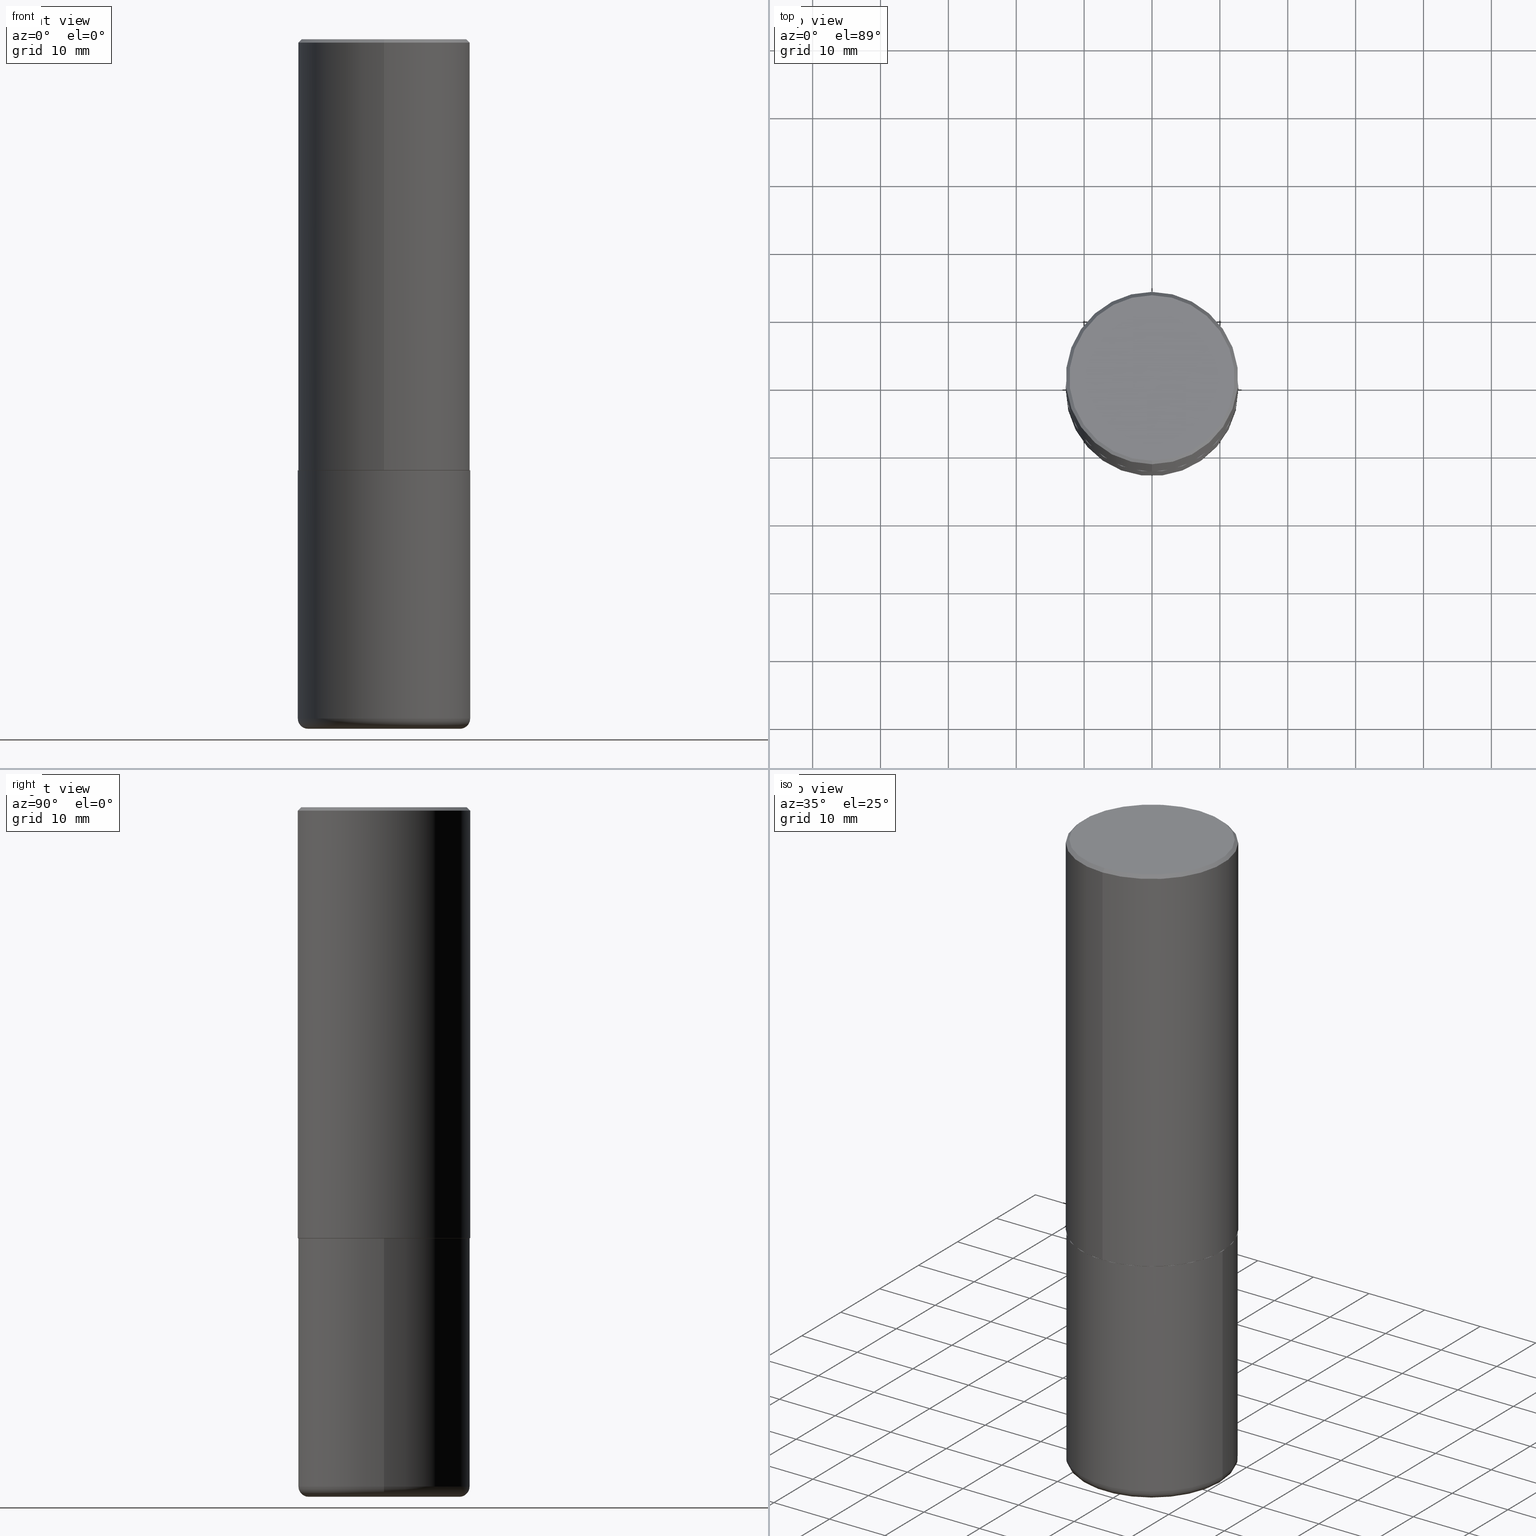
[diagram: canonical four-view strip — front | top / right | iso, engineering-drawing reading convention]
A machine part, canonical four-view strip (front | top / right | iso — engineering-drawing reading convention). The complete STEP part file that produces these views, byte-faithful:
ISO-10303-21;
HEADER;
FILE_DESCRIPTION (( 'STEP AP203' ),
    '1' );
FILE_NAME ('36391.STEP',
    '2024-03-01T16:25:34',
    ( '' ),
    ( '' ),
    'SwSTEP 2.0',
    'SolidWorks 2023',
    '' );
FILE_SCHEMA (( 'CONFIG_CONTROL_DESIGN' ));
ENDSEC;

DATA;
#1 = ORIENTED_EDGE ( 'NONE', *, *, #255, .F. ) ;
#2 = AXIS2_PLACEMENT_3D ( 'NONE', #315, #117, #113 ) ;
#3 = ORIENTED_EDGE ( 'NONE', *, *, #417, .T. ) ;
#4 = DIRECTION ( 'NONE',  ( -1.000000000000000000, 6.982962677686265922E-15, -4.876176775795935793E-29 ) ) ;
#5 = EDGE_CURVE ( 'NONE', #310, #291, #336, .T. ) ;
#6 = ORIENTED_EDGE ( 'NONE', *, *, #366, .F. ) ;
#7 = DIRECTION ( 'NONE',  ( 2.438088387897960049E-29, -3.491481338843145188E-15, -1.000000000000000000 ) ) ;
#8 = ORIENTED_EDGE ( 'NONE', *, *, #371, .F. ) ;
#9 = CARTESIAN_POINT ( 'NONE',  ( 3.491481338843133355E-15, 0.4999999999999999445, -0.02000000000000185310 ) ) ;
#10 = CALENDAR_DATE ( 2024, 1, 3 ) ;
#11 = ORIENTED_EDGE ( 'NONE', *, *, #385, .F. ) ;
#12 = AXIS2_PLACEMENT_3D ( 'NONE', #135, #129, #272 ) ;
#13 = DIRECTION ( 'NONE',  ( -2.445468806185136597E-29, 3.491481338843145583E-15, 1.000000000000000000 ) ) ;
#14 = ADVANCED_FACE ( 'NONE', ( #338 ), #307, .T. ) ;
#15 = CARTESIAN_POINT ( 'NONE',  ( -3.439847008941952136E-45, 4.909920141751372761E-31, 1.406439127464440065E-16 ) ) ;
#16 = CYLINDRICAL_SURFACE ( 'NONE', #388, 0.5000000000000000000 ) ;
#17 = AXIS2_PLACEMENT_3D ( 'NONE', #232, #339, #65 ) ;
#18 = CARTESIAN_POINT ( 'NONE',  ( 6.112015449145901369E-29, -8.724082112502882072E-15, -2.499000000000000110 ) ) ;
#19 = DIRECTION ( 'NONE',  ( 1.000000000000000000, -6.982962677686265133E-15, 0.000000000000000000 ) ) ;
#20 = DIRECTION ( 'NONE',  ( -2.445468806185136597E-29, 3.491481338843145583E-15, 1.000000000000000000 ) ) ;
#21 = CARTESIAN_POINT ( 'NONE',  ( -3.491481338843073796E-15, -0.5000000000000089928, -2.498999999999998778 ) ) ;
#22 = EDGE_CURVE ( 'NONE', #310, #214, #365, .T. ) ;
#23 = VECTOR ( 'NONE', #278, 39.37007874015748143 ) ;
#24 = APPLICATION_PROTOCOL_DEFINITION ( 'international standard', 'config_control_design', 1994, #82 ) ;
#25 = DIRECTION ( 'NONE',  ( -6.982962677686265922E-15, -1.000000000000000000, 3.491029256703833834E-15 ) ) ;
#26 = APPROVAL_DATE_TIME ( #324, #90 ) ;
#27 = ORIENTED_EDGE ( 'NONE', *, *, #337, .T. ) ;
#28 = PERSON_AND_ORGANIZATION ( #397, #174 ) ;
#29 = EDGE_CURVE ( 'NONE', #271, #177, #183, .T. ) ;
#30 = CALENDAR_DATE ( 2024, 1, 3 ) ;
#31 = AXIS2_PLACEMENT_3D ( 'NONE', #143, #45, #207 ) ;
#32 = ORIENTED_EDGE ( 'NONE', *, *, #22, .F. ) ;
#33 = CARTESIAN_POINT ( 'NONE',  ( 4.891568986911511881E-31, -6.982058513407704202E-17, -0.02000000000000010797 ) ) ;
#34 = ADVANCED_FACE ( 'NONE', ( #280 ), #97, .T. ) ;
#35 = DIRECTION ( 'NONE',  ( -4.937700262165728178E-15, -0.7071067811867141062, 0.7071067811863809283 ) ) ;
#36 = CALENDAR_DATE ( 2024, 1, 3 ) ;
#37 = CARTESIAN_POINT ( 'NONE',  ( 4.891568986911511881E-31, -6.982058513407704202E-17, -0.02000000000000010797 ) ) ;
#38 = LINE ( 'NONE', #299, #258 ) ;
#39 = CARTESIAN_POINT ( 'NONE',  ( 3.552713678800533273E-15, 0.4999999999999916178, -2.499000000000001886 ) ) ;
#40 = EDGE_LOOP ( 'NONE', ( #195, #130, #164, #136 ) ) ;
#41 = ORIENTED_EDGE ( 'NONE', *, *, #84, .F. ) ;
#42 = LINE ( 'NONE', #178, #23 ) ;
#43 = DIRECTION ( 'NONE',  ( -2.445784493455742698E-29, 3.491029256703833440E-15, 1.000000000000000000 ) ) ;
#44 = DIRECTION ( 'NONE',  ( -2.445784493455742698E-29, 3.491029256703833440E-15, 1.000000000000000000 ) ) ;
#45 = DIRECTION ( 'NONE',  ( 2.445784493455742698E-29, -3.491029256703833834E-15, -1.000000000000000000 ) ) ;
#46 = ORIENTED_EDGE ( 'NONE', *, *, #122, .T. ) ;
#47 = CARTESIAN_POINT ( 'NONE',  ( 6.114461233639357165E-29, -8.727573141759585177E-15, -2.500000000000000000 ) ) ;
#48 = PRODUCT_RELATED_PRODUCT_CATEGORY ( 'detail', '', ( #289 ) ) ;
#49 = PLANE ( 'NONE',  #2 ) ;
#50 = AXIS2_PLACEMENT_3D ( 'NONE', #151, #218, #352 ) ;
#51 = CARTESIAN_POINT ( 'NONE',  ( -3.430248998885764992E-15, -0.5000000000000001110, -0.01999999999999835937 ) ) ;
#52 = EDGE_CURVE ( 'NONE', #214, #201, #38, .T. ) ;
#53 = DIRECTION ( 'NONE',  ( 1.000000000000000000, -6.982962677686269077E-15, 0.000000000000000000 ) ) ;
#54 = CARTESIAN_POINT ( 'NONE',  ( 6.113672015462842613E-29, -8.728703347107864943E-15, -2.500000000000000000 ) ) ;
#55 = CIRCLE ( 'NONE', #297, 0.5000000000000001110 ) ;
#56 = CIRCLE ( 'NONE', #204, 0.4799999999999998157 ) ;
#57 = CARTESIAN_POINT ( 'NONE',  ( 0.000000000000000000, 0.000000000000000000, 0.000000000000000000 ) ) ;
#58 = ORIENTED_EDGE ( 'NONE', *, *, #145, .F. ) ;
#59 = EDGE_CURVE ( 'NONE', #94, #134, #235, .T. ) ;
#60 = ORIENTED_EDGE ( 'NONE', *, *, #243, .F. ) ;
#61 = CALENDAR_DATE ( 2024, 1, 3 ) ;
#62 = ADVANCED_FACE ( 'NONE', ( #217 ), #73, .T. ) ;
#63 = ORIENTED_EDGE ( 'NONE', *, *, #176, .T. ) ;
#64 = EDGE_LOOP ( 'NONE', ( #126, #395 ) ) ;
#65 = DIRECTION ( 'NONE',  ( 1.000000000000000000, -6.982962677686265133E-15, 0.000000000000000000 ) ) ;
#66 = VECTOR ( 'NONE', #35, 39.37007874015748143 ) ;
#67 = CARTESIAN_POINT ( 'NONE',  ( 0.5000000000000001110, -1.724791781388512737E-14, -3.939999999999999947 ) ) ;
#68 = CARTESIAN_POINT ( 'NONE',  ( 3.552713678800501718E-15, 0.5000000000000001110, -1.745514628351917311E-15 ) ) ;
#69 = DIRECTION ( 'NONE',  ( -2.445784493455742698E-29, 3.491029256703833834E-15, 1.000000000000000000 ) ) ;
#70 = ORIENTED_EDGE ( 'NONE', *, *, #92, .F. ) ;
#71 = VERTEX_POINT ( 'NONE', #286 ) ;
#72 = APPLICATION_PROTOCOL_DEFINITION ( 'international standard', 'config_control_design', 1994, #114 ) ;
#73 = TOROIDAL_SURFACE ( 'NONE', #50, 0.4400000000000000022, 0.06000000000000024758 ) ;
#74 = ORIENTED_EDGE ( 'NONE', *, *, #326, .T. ) ;
#75 = AXIS2_PLACEMENT_3D ( 'NONE', #238, #7, #4 ) ;
#76 = APPROVAL_PERSON_ORGANIZATION ( #28, #406, #239 ) ;
#77 = CARTESIAN_POINT ( 'NONE',  ( 9.781875224740547508E-29, -1.396592535537258391E-14, -4.000000000000000888 ) ) ;
#78 = CC_DESIGN_PERSON_AND_ORGANIZATION_ASSIGNMENT ( #227, #389, ( #247 ) ) ;
#79 = CARTESIAN_POINT ( 'NONE',  ( 0.4400000000000000022, -1.682894005322395074E-14, -3.939999999999999947 ) ) ;
#80 = DIRECTION ( 'NONE',  ( -6.982962677686265922E-15, -1.000000000000000000, 3.284787166730577015E-15 ) ) ;
#81 = CARTESIAN_POINT ( 'NONE',  ( 0.5000000000000000000, -1.222018468595099830E-14, -2.500000000000000000 ) ) ;
#82 = APPLICATION_CONTEXT ( 'configuration controlled 3d designs of mechanical parts and assemblies' ) ;
#83 = DIRECTION ( 'NONE',  ( -6.982962677686265922E-15, -1.000000000000000000, 3.491029256703833834E-15 ) ) ;
#84 = EDGE_CURVE ( 'NONE', #71, #327, #290, .T. ) ;
#85 = CYLINDRICAL_SURFACE ( 'NONE', #236, 0.5000000000000001110 ) ;
#86 = PERSON_AND_ORGANIZATION ( #397, #174 ) ;
#87 = APPROVAL_STATUS ( 'not_yet_approved' ) ;
#88 = CLOSED_SHELL ( 'NONE', ( #330, #191, #347, #318, #34, #295, #400, #138 ) ) ;
#89 = CALENDAR_DATE ( 2024, 1, 3 ) ;
#90 = APPROVAL ( #87, 'UNSPECIFIED' ) ;
#91 = ADVANCED_BREP_SHAPE_REPRESENTATION ( '36391', ( #263, #118, #119 ), #101 ) ;
#92 = EDGE_CURVE ( 'NONE', #177, #201, #312, .T. ) ;
#93 = AXIS2_PLACEMENT_3D ( 'NONE', #405, #251, #261 ) ;
#94 = VERTEX_POINT ( 'NONE', #148 ) ;
#95 = DIRECTION ( 'NONE',  ( -2.445784493455742698E-29, 3.491029256703833834E-15, 1.000000000000000000 ) ) ;
#96 = COORDINATED_UNIVERSAL_TIME_OFFSET ( 5, 0, .BEHIND. ) ;
#97 = CYLINDRICAL_SURFACE ( 'NONE', #265, 0.5000000000000001110 ) ;
#98 = CARTESIAN_POINT ( 'NONE',  ( 3.421651712066270057E-15, 0.4799999999999998157, -1.535050130471395610E-15 ) ) ;
#99 = DATE_AND_TIME ( #36, #382 ) ;
#100 = LINE ( 'NONE', #266, #66 ) ;
#101 =( GEOMETRIC_REPRESENTATION_CONTEXT ( 3 ) GLOBAL_UNCERTAINTY_ASSIGNED_CONTEXT ( ( #153 ) ) GLOBAL_UNIT_ASSIGNED_CONTEXT ( ( #115, #346, #181 ) ) REPRESENTATION_CONTEXT ( 'NONE', 'WORKASPACE' ) );
#102 = LINE ( 'NONE', #199, #282 ) ;
#103 = EDGE_LOOP ( 'NONE', ( #325, #418, #212, #372 ) ) ;
#104 = CC_DESIGN_PERSON_AND_ORGANIZATION_ASSIGNMENT ( #86, #373, ( #306 ) ) ;
#105 = DIRECTION ( 'NONE',  ( -2.445784493455742698E-29, 3.491029256703833834E-15, 1.000000000000000000 ) ) ;
#106 = EDGE_LOOP ( 'NONE', ( #70, #180, #3, #262 ) ) ;
#107 = DIRECTION ( 'NONE',  ( -6.982962677686266711E-15, -1.000000000000000000, 3.278217592397114284E-15 ) ) ;
#108 = ADVANCED_FACE ( 'NONE', ( #184 ), #49, .F. ) ;
#109 = AXIS2_PLACEMENT_3D ( 'NONE', #186, #376, #189 ) ;
#110 = FACE_OUTER_BOUND ( 'NONE', #40, .T. ) ;
#111 = CIRCLE ( 'NONE', #17, 0.5000000000000001110 ) ;
#112 = DIRECTION ( 'NONE',  ( -2.445468806185136597E-29, 3.491481338843145583E-15, 1.000000000000000000 ) ) ;
#113 = DIRECTION ( 'NONE',  ( -1.000000000000000000, 6.982962677686265922E-15, -4.876176775795935793E-29 ) ) ;
#114 = APPLICATION_CONTEXT ( 'configuration controlled 3d designs of mechanical parts and assemblies' ) ;
#115 =( CONVERSION_BASED_UNIT ( 'INCH', #349 ) LENGTH_UNIT ( ) NAMED_UNIT ( #309 ) );
#116 = DIRECTION ( 'NONE',  ( 1.000000000000000000, -6.982962677686266711E-15, 4.876176775795935793E-29 ) ) ;
#117 = DIRECTION ( 'NONE',  ( 2.438088387897960049E-29, -3.491481338843145188E-15, -1.000000000000000000 ) ) ;
#118 = MANIFOLD_SOLID_BREP ( 'Body-Move/Copy2[2]', #88 ) ;
#119 = AXIS2_PLACEMENT_3D ( 'NONE', #57, #328, #354 ) ;
#120 = DIRECTION ( 'NONE',  ( -2.445468806185136597E-29, 3.491481338843145583E-15, 1.000000000000000000 ) ) ;
#121 = PERSON_AND_ORGANIZATION ( #397, #174 ) ;
#122 = EDGE_CURVE ( 'NONE', #359, #128, #55, .T. ) ;
#123 = PERSON_AND_ORGANIZATION ( #397, #174 ) ;
#124 = EDGE_LOOP ( 'NONE', ( #8, #231, #398, #32 ) ) ;
#125 = CIRCLE ( 'NONE', #396, 0.4400000000000000022 ) ;
#126 = ORIENTED_EDGE ( 'NONE', *, *, #163, .F. ) ;
#127 = DATE_TIME_ROLE ( 'classification_date' ) ;
#128 = VERTEX_POINT ( 'NONE', #350 ) ;
#129 = DIRECTION ( 'NONE',  ( -2.445784493455742698E-29, 3.491029256703833834E-15, 1.000000000000000000 ) ) ;
#130 = ORIENTED_EDGE ( 'NONE', *, *, #5, .T. ) ;
#131 = CARTESIAN_POINT ( 'NONE',  ( 6.114461233639357165E-29, -8.727573141759585177E-15, -2.500000000000000000 ) ) ;
#132 = CONICAL_SURFACE ( 'NONE', #31, 0.5000000000000000000, 0.7853981633974471688 ) ;
#133 = CONICAL_SURFACE ( 'NONE', #161, 0.4989999999999999991, 0.7853981633976873100 ) ;
#134 = VERTEX_POINT ( 'NONE', #81 ) ;
#135 = CARTESIAN_POINT ( 'NONE',  ( 4.891568986911511881E-31, -6.982058513407704202E-17, -0.02000000000000010797 ) ) ;
#136 = ORIENTED_EDGE ( 'NONE', *, *, #52, .F. ) ;
#137 = APPROVAL_DATE_TIME ( #242, #406 ) ;
#138 = ADVANCED_FACE ( 'NONE', ( #353 ), #285, .F. ) ;
#139 = CARTESIAN_POINT ( 'NONE',  ( 6.114461233639357165E-29, -8.727573141759585177E-15, -2.500000000000000000 ) ) ;
#140 = CONICAL_SURFACE ( 'NONE', #313, 0.5000000000000000000, 0.7853981633974471688 ) ;
#141 = DIRECTION ( 'NONE',  ( -6.982962677686265922E-15, -1.000000000000000000, 3.491643216902136408E-15 ) ) ;
#142 = ORIENTED_EDGE ( 'NONE', *, *, #92, .T. ) ;
#143 = CARTESIAN_POINT ( 'NONE',  ( 4.891568986911511881E-31, -6.982058513407704202E-17, -0.02000000000000010797 ) ) ;
#144 = ORIENTED_EDGE ( 'NONE', *, *, #417, .F. ) ;
#145 = EDGE_CURVE ( 'NONE', #134, #94, #274, .T. ) ;
#146 = DIRECTION ( 'NONE',  ( -6.982962677686265922E-15, -1.000000000000000000, 3.491029256703833834E-15 ) ) ;
#147 = DIRECTION ( 'NONE',  ( -6.982962677686266711E-15, -1.000000000000000000, 3.278217592397114284E-15 ) ) ;
#148 = CARTESIAN_POINT ( 'NONE',  ( -0.5000000000000000000, -7.689856232274428549E-15, -2.500000000000000000 ) ) ;
#149 = CC_DESIGN_APPROVAL ( #230, ( #247 ) ) ;
#150 = CARTESIAN_POINT ( 'NONE',  ( 6.114461233639357165E-29, -8.727573141759585177E-15, -2.500000000000000000 ) ) ;
#151 = CARTESIAN_POINT ( 'NONE',  ( 9.635147096369438236E-29, -1.375643647504199401E-14, -3.939999999999999947 ) ) ;
#152 = DIRECTION ( 'NONE',  ( 1.000000000000000000, -6.982962677686266711E-15, 0.000000000000000000 ) ) ;
#153 = UNCERTAINTY_MEASURE_WITH_UNIT (LENGTH_MEASURE( 1.000000000000000082E-05 ), #115, 'distance_accuracy_value', 'NONE');
#154 = CARTESIAN_POINT ( 'NONE',  ( -3.430248998885764992E-15, -0.5000000000000001110, -0.01999999999999835937 ) ) ;
#155 = VECTOR ( 'NONE', #377, 39.37007874015748143 ) ;
#156 = LOCAL_TIME ( 11, 25, 34.00000000000000000, #340 ) ;
#157 = DIRECTION ( 'NONE',  ( 1.000000000000000000, -6.982962677686266711E-15, 4.883557194083113462E-29 ) ) ;
#158 = ADVANCED_FACE ( 'NONE', ( #407 ), #16, .T. ) ;
#159 = EDGE_LOOP ( 'NONE', ( #368, #241, #194, #6 ) ) ;
#160 = MECHANICAL_CONTEXT ( 'NONE', #114, 'mechanical' ) ;
#161 = AXIS2_PLACEMENT_3D ( 'NONE', #131, #95, #281 ) ;
#162 = PERSON_AND_ORGANIZATION_ROLE ( 'creator' ) ;
#163 = EDGE_CURVE ( 'NONE', #414, #225, #125, .T. ) ;
#164 = ORIENTED_EDGE ( 'NONE', *, *, #337, .F. ) ;
#165 = DIRECTION ( 'NONE',  ( 6.982962677686265922E-15, 1.000000000000000000, -3.491643216902136408E-15 ) ) ;
#166 = ORIENTED_EDGE ( 'NONE', *, *, #288, .T. ) ;
#167 = AXIS2_PLACEMENT_3D ( 'NONE', #168, #301, #298 ) ;
#168 = CARTESIAN_POINT ( 'NONE',  ( -0.4400000000000000022, -1.063004843769755357E-14, -3.939999999999999947 ) ) ;
#169 = DIRECTION ( 'NONE',  ( 1.000000000000000000, -6.982962677686266711E-15, 4.876176775795935793E-29 ) ) ;
#170 = ADVANCED_FACE ( 'NONE', ( #409 ), #334, .T. ) ;
#171 = DIRECTION ( 'NONE',  ( -2.445784493455742698E-29, 3.491029256703833834E-15, 1.000000000000000000 ) ) ;
#172 = EDGE_LOOP ( 'NONE', ( #46, #391, #58, #209 ) ) ;
#173 = AXIS2_PLACEMENT_3D ( 'NONE', #279, #401, #107 ) ;
#174 = ORGANIZATION ( 'UNSPECIFIED', 'UNSPECIFIED', '' ) ;
#175 = DIRECTION ( 'NONE',  ( -6.982962677686265922E-15, -1.000000000000000000, 3.491029256703833440E-15 ) ) ;
#176 = EDGE_CURVE ( 'NONE', #177, #271, #56, .T. ) ;
#177 = VERTEX_POINT ( 'NONE', #223 ) ;
#178 = CARTESIAN_POINT ( 'NONE',  ( 0.5000000000000000000, -3.491481338843133355E-15, 2.438088387897967896E-29 ) ) ;
#179 = PLANE ( 'NONE',  #416 ) ;
#180 = ORIENTED_EDGE ( 'NONE', *, *, #29, .F. ) ;
#181 =( NAMED_UNIT ( * ) SI_UNIT ( $, .STERADIAN. ) SOLID_ANGLE_UNIT ( ) );
#182 = CARTESIAN_POINT ( 'NONE',  ( 0.000000000000000000, 0.000000000000000000, 0.000000000000000000 ) ) ;
#183 = CIRCLE ( 'NONE', #267, 0.4799999999999998157 ) ;
#184 = FACE_OUTER_BOUND ( 'NONE', #237, .T. ) ;
#185 = CIRCLE ( 'NONE', #196, 0.4400000000000000022 ) ;
#186 = CARTESIAN_POINT ( 'NONE',  ( 3.351822085289406364E-15, 0.4799999999999998157, -1.605372086844617625E-15 ) ) ;
#187 = DATE_TIME_ROLE ( 'creation_date' ) ;
#188 = PERSON_AND_ORGANIZATION ( #397, #174 ) ;
#189 = DIRECTION ( 'NONE',  ( 6.982962677686265922E-15, 1.000000000000000000, -3.491029256703833440E-15 ) ) ;
#190 = VECTOR ( 'NONE', #378, 39.37007874015748143 ) ;
#191 = ADVANCED_FACE ( 'NONE', ( #110 ), #85, .T. ) ;
#192 = AXIS2_PLACEMENT_3D ( 'NONE', #139, #69, #343 ) ;
#193 = PERSON_AND_ORGANIZATION_ROLE ( 'design_owner' ) ;
#194 = ORIENTED_EDGE ( 'NONE', *, *, #52, .T. ) ;
#195 = ORIENTED_EDGE ( 'NONE', *, *, #385, .T. ) ;
#196 = AXIS2_PLACEMENT_3D ( 'NONE', #77, #112, #152 ) ;
#197 = COORDINATED_UNIVERSAL_TIME_OFFSET ( 5, 0, .BEHIND. ) ;
#198 = APPROVAL_ROLE ( '' ) ;
#199 = CARTESIAN_POINT ( 'NONE',  ( 3.545608251442960663E-15, 0.4989999999999912283, -2.500000000000001776 ) ) ;
#200 = ORIENTED_EDGE ( 'NONE', *, *, #371, .T. ) ;
#201 = VERTEX_POINT ( 'NONE', #154 ) ;
#202 = DIRECTION ( 'NONE',  ( -2.445784493455742698E-29, 3.491029256703833834E-15, 1.000000000000000000 ) ) ;
#203 = CC_DESIGN_DATE_AND_TIME_ASSIGNMENT ( #208, #127, ( #306 ) ) ;
#204 = AXIS2_PLACEMENT_3D ( 'NONE', #402, #253, #83 ) ;
#205 = DIRECTION ( 'NONE',  ( 5.024295867789263036E-15, 0.7071067811867189912, 0.7071067811863760433 ) ) ;
#206 = CARTESIAN_POINT ( 'NONE',  ( 6.113672015462842613E-29, -8.728703347107864943E-15, -2.500000000000000000 ) ) ;
#207 = DIRECTION ( 'NONE',  ( 6.982962677686265922E-15, 1.000000000000000000, -3.491643216902136408E-15 ) ) ;
#208 = DATE_AND_TIME ( #10, #314 ) ;
#209 = ORIENTED_EDGE ( 'NONE', *, *, #326, .F. ) ;
#210 = FACE_OUTER_BOUND ( 'NONE', #124, .T. ) ;
#211 = APPROVAL_DATE_TIME ( #99, #230 ) ;
#212 = ORIENTED_EDGE ( 'NONE', *, *, #243, .T. ) ;
#213 = AXIS2_PLACEMENT_3D ( 'NONE', #364, #13, #169 ) ;
#214 = VERTEX_POINT ( 'NONE', #21 ) ;
#215 = LOCAL_TIME ( 11, 25, 34.00000000000000000, #292 ) ;
#216 =( LENGTH_UNIT ( ) NAMED_UNIT ( * ) SI_UNIT ( $, .METRE. ) );
#217 = FACE_OUTER_BOUND ( 'NONE', #103, .T. ) ;
#218 = DIRECTION ( 'NONE',  ( -2.445468806185136597E-29, 3.491481338843145583E-15, 1.000000000000000000 ) ) ;
#219 = CC_DESIGN_PERSON_AND_ORGANIZATION_ASSIGNMENT ( #284, #275, ( #247 ) ) ;
#220 = CARTESIAN_POINT ( 'NONE',  ( 0.4400000000000000022, -1.703842893355454063E-14, -4.000000000000000888 ) ) ;
#221 = AXIS2_PLACEMENT_3D ( 'NONE', #54, #120, #53 ) ;
#222 = SECURITY_CLASSIFICATION_LEVEL ( 'unclassified' ) ;
#223 = CARTESIAN_POINT ( 'NONE',  ( -3.361644018908049661E-15, -0.4799999999999998157, 1.816337955964283672E-15 ) ) ;
#224 = CARTESIAN_POINT ( 'NONE',  ( 9.635147096369438236E-29, -1.375643647504199401E-14, -3.939999999999999947 ) ) ;
#225 = VERTEX_POINT ( 'NONE', #287 ) ;
#226 = AXIS2_PLACEMENT_3D ( 'NONE', #384, #383, #157 ) ;
#227 = PERSON_AND_ORGANIZATION ( #397, #174 ) ;
#228 = LOCAL_TIME ( 11, 25, 34.00000000000000000, #415 ) ;
#229 = EDGE_LOOP ( 'NONE', ( #273, #63 ) ) ;
#230 = APPROVAL ( #296, 'UNSPECIFIED' ) ;
#231 = ORIENTED_EDGE ( 'NONE', *, *, #84, .T. ) ;
#232 = CARTESIAN_POINT ( 'NONE',  ( 9.635147096369438236E-29, -1.375643647504199401E-14, -3.939999999999999947 ) ) ;
#233 = ORIENTED_EDGE ( 'NONE', *, *, #59, .F. ) ;
#234 = FACE_OUTER_BOUND ( 'NONE', #106, .T. ) ;
#235 = CIRCLE ( 'NONE', #410, 0.5000000000000000000 ) ;
#236 = AXIS2_PLACEMENT_3D ( 'NONE', #319, #248, #25 ) ;
#237 = EDGE_LOOP ( 'NONE', ( #360, #348 ) ) ;
#238 = CARTESIAN_POINT ( 'NONE',  ( 6.313440210036972125E-29, -1.893292170748942541E-14, -4.000000000000000000 ) ) ;
#239 = APPROVAL_ROLE ( '' ) ;
#240 = DIRECTION ( 'NONE',  ( 2.445784493455742698E-29, -3.491029256703833834E-15, -1.000000000000000000 ) ) ;
#241 = ORIENTED_EDGE ( 'NONE', *, *, #22, .T. ) ;
#242 = DATE_AND_TIME ( #61, #156 ) ;
#243 = EDGE_CURVE ( 'NONE', #414, #359, #268, .T. ) ;
#244 = FACE_OUTER_BOUND ( 'NONE', #369, .T. ) ;
#245 = ORIENTED_EDGE ( 'NONE', *, *, #250, .F. ) ;
#246 = CIRCLE ( 'NONE', #259, 0.5000000000000000000 ) ;
#247 = PRODUCT_DEFINITION_FORMATION_WITH_SPECIFIED_SOURCE ( 'ANY', '', #289, .NOT_KNOWN. ) ;
#248 = DIRECTION ( 'NONE',  ( -2.445784493455742698E-29, 3.491029256703833834E-15, 1.000000000000000000 ) ) ;
#249 = LINE ( 'NONE', #408, #155 ) ;
#250 = EDGE_CURVE ( 'NONE', #327, #71, #323, .T. ) ;
#251 = DIRECTION ( 'NONE',  ( -2.445784493455742698E-29, 3.491029256703833834E-15, 1.000000000000000000 ) ) ;
#252 = CARTESIAN_POINT ( 'NONE',  ( 9.781875224740547508E-29, -1.396592535537258391E-14, -4.000000000000000888 ) ) ;
#253 = DIRECTION ( 'NONE',  ( -2.445784493455742698E-29, 3.491029256703833834E-15, 1.000000000000000000 ) ) ;
#254 = CONICAL_SURFACE ( 'NONE', #192, 0.4989999999999999991, 0.7853981633976873100 ) ;
#255 = EDGE_CURVE ( 'NONE', #327, #214, #100, .T. ) ;
#256 = DIRECTION ( 'NONE',  ( -2.445468806185136597E-29, 3.491481338843145583E-15, 1.000000000000000000 ) ) ;
#257 = PRODUCT_DEFINITION_SHAPE ( 'NONE', 'NONE',  #311 ) ;
#258 = VECTOR ( 'NONE', #394, 39.37007874015748143 ) ;
#259 = AXIS2_PLACEMENT_3D ( 'NONE', #37, #105, #141 ) ;
#260 = ORIENTED_EDGE ( 'NONE', *, *, #250, .T. ) ;
#261 = DIRECTION ( 'NONE',  ( -6.982962677686265922E-15, -1.000000000000000000, 3.284787166730577015E-15 ) ) ;
#262 = ORIENTED_EDGE ( 'NONE', *, *, #366, .T. ) ;
#263 = MANIFOLD_SOLID_BREP ( 'Body-Move/Copy2[1]', #387 ) ;
#264 = ORIENTED_EDGE ( 'NONE', *, *, #122, .F. ) ;
#265 = AXIS2_PLACEMENT_3D ( 'NONE', #363, #202, #333 ) ;
#266 = CARTESIAN_POINT ( 'NONE',  ( -3.484498376165385415E-15, -0.4990000000000087144, -2.499999999999998668 ) ) ;
#267 = AXIS2_PLACEMENT_3D ( 'NONE', #15, #171, #146 ) ;
#268 = CIRCLE ( 'NONE', #367, 0.06000000000000024758 ) ;
#269 = CC_DESIGN_PERSON_AND_ORGANIZATION_ASSIGNMENT ( #123, #162, ( #311 ) ) ;
#270 = ORIENTED_EDGE ( 'NONE', *, *, #380, .F. ) ;
#271 = VERTEX_POINT ( 'NONE', #98 ) ;
#272 = DIRECTION ( 'NONE',  ( -6.982962677686265922E-15, -1.000000000000000000, 3.491643216902136408E-15 ) ) ;
#273 = ORIENTED_EDGE ( 'NONE', *, *, #29, .T. ) ;
#274 = CIRCLE ( 'NONE', #221, 0.5000000000000000000 ) ;
#275 = PERSON_AND_ORGANIZATION_ROLE ( 'creator' ) ;
#276 = ORIENTED_EDGE ( 'NONE', *, *, #362, .T. ) ;
#277 = ADVANCED_FACE ( 'NONE', ( #303 ), #300, .T. ) ;
#278 = DIRECTION ( 'NONE',  ( -2.445468806185136877E-29, 3.491481338843145188E-15, 1.000000000000000000 ) ) ;
#279 = CARTESIAN_POINT ( 'NONE',  ( 6.112015449145901369E-29, -8.724082112502882072E-15, -2.499000000000000110 ) ) ;
#280 = FACE_OUTER_BOUND ( 'NONE', #159, .T. ) ;
#281 = DIRECTION ( 'NONE',  ( -6.982962677686265922E-15, -1.000000000000000000, 3.284787166730577015E-15 ) ) ;
#282 = VECTOR ( 'NONE', #205, 39.37007874015748143 ) ;
#283 = DIRECTION ( 'NONE',  ( 1.000000000000000000, -6.982962677686271444E-15, 0.000000000000000000 ) ) ;
#284 = PERSON_AND_ORGANIZATION ( #397, #174 ) ;
#285 = PLANE ( 'NONE',  #109 ) ;
#286 = CARTESIAN_POINT ( 'NONE',  ( 3.549160965121762351E-15, 0.4989999999999912283, -2.500000000000001776 ) ) ;
#287 = CARTESIAN_POINT ( 'NONE',  ( -0.4400000000000000022, -1.052163005713481670E-14, -4.000000000000000888 ) ) ;
#288 = EDGE_CURVE ( 'NONE', #128, #359, #111, .T. ) ;
#289 = PRODUCT ( '36391', '36391', '', ( #160 ) ) ;
#290 = CIRCLE ( 'NONE', #320, 0.4989999999999999991 ) ;
#291 = VERTEX_POINT ( 'NONE', #9 ) ;
#292 = COORDINATED_UNIVERSAL_TIME_OFFSET ( 5, 0, .BEHIND. ) ;
#293 = EDGE_LOOP ( 'NONE', ( #260, #200, #11, #1 ) ) ;
#294 = ORIENTED_EDGE ( 'NONE', *, *, #163, .T. ) ;
#295 = ADVANCED_FACE ( 'NONE', ( #210 ), #254, .T. ) ;
#296 = APPROVAL_STATUS ( 'not_yet_approved' ) ;
#297 = AXIS2_PLACEMENT_3D ( 'NONE', #224, #316, #19 ) ;
#298 = DIRECTION ( 'NONE',  ( -1.000000000000000000, 7.105427357600993970E-15, 0.000000000000000000 ) ) ;
#299 = CARTESIAN_POINT ( 'NONE',  ( -3.491481338843133750E-15, -0.5000000000000001110, 1.745514628351917311E-15 ) ) ;
#300 = PLANE ( 'NONE',  #75 ) ;
#301 = DIRECTION ( 'NONE',  ( 7.105427357601001859E-15, 1.000000000000000000, -3.491481338843145583E-15 ) ) ;
#302 = EDGE_LOOP ( 'NONE', ( #270, #166, #74, #233 ) ) ;
#303 = FACE_OUTER_BOUND ( 'NONE', #64, .T. ) ;
#304 = CC_DESIGN_DATE_AND_TIME_ASSIGNMENT ( #358, #187, ( #311 ) ) ;
#305 = EDGE_LOOP ( 'NONE', ( #342, #142, #27, #144 ) ) ;
#306 = SECURITY_CLASSIFICATION ( '', '', #222 ) ;
#307 = CYLINDRICAL_SURFACE ( 'NONE', #213, 0.5000000000000000000 ) ;
#308 = FACE_OUTER_BOUND ( 'NONE', #293, .T. ) ;
#309 = DIMENSIONAL_EXPONENTS ( 1.000000000000000000, 0.000000000000000000, 0.000000000000000000, 0.000000000000000000, 0.000000000000000000, 0.000000000000000000, 0.000000000000000000 ) ;
#310 = VERTEX_POINT ( 'NONE', #39 ) ;
#311 = PRODUCT_DEFINITION ( 'UNKNOWN', '', #247, #317 ) ;
#312 = LINE ( 'NONE', #51, #190 ) ;
#313 = AXIS2_PLACEMENT_3D ( 'NONE', #33, #240, #165 ) ;
#314 = LOCAL_TIME ( 11, 25, 34.00000000000000000, #197 ) ;
#315 = CARTESIAN_POINT ( 'NONE',  ( 4.206032757375876713E-29, -1.146055134077212698E-14, -2.500000000000000000 ) ) ;
#316 = DIRECTION ( 'NONE',  ( -2.445468806185136597E-29, 3.491481338843145583E-15, 1.000000000000000000 ) ) ;
#317 = DESIGN_CONTEXT ( 'detailed design', #82, 'design' ) ;
#318 = ADVANCED_FACE ( 'NONE', ( #234 ), #132, .T. ) ;
#319 = CARTESIAN_POINT ( 'NONE',  ( 0.000000000000000000, 0.000000000000000000, 0.000000000000000000 ) ) ;
#320 = AXIS2_PLACEMENT_3D ( 'NONE', #47, #351, #80 ) ;
#321 = VECTOR ( 'NONE', #341, 39.37007874015748143 ) ;
#322 = DIRECTION ( 'NONE',  ( 1.000000000000000000, -6.982962677686266711E-15, 0.000000000000000000 ) ) ;
#323 = CIRCLE ( 'NONE', #93, 0.4989999999999999991 ) ;
#324 = DATE_AND_TIME ( #30, #228 ) ;
#325 = ORIENTED_EDGE ( 'NONE', *, *, #362, .F. ) ;
#326 = EDGE_CURVE ( 'NONE', #359, #134, #42, .T. ) ;
#327 = VERTEX_POINT ( 'NONE', #399 ) ;
#328 = DIRECTION ( 'NONE',  ( 0.000000000000000000, 0.000000000000000000, 1.000000000000000000 ) ) ;
#329 = EDGE_LOOP ( 'NONE', ( #294, #276, #264, #60 ) ) ;
#330 = ADVANCED_FACE ( 'NONE', ( #308 ), #133, .T. ) ;
#331 = CARTESIAN_POINT ( 'NONE',  ( -0.5000000000000000000, 3.552713678800500929E-15, -2.459467545127452891E-29 ) ) ;
#332 = PERSON_AND_ORGANIZATION ( #397, #174 ) ;
#333 = DIRECTION ( 'NONE',  ( -6.982962677686265922E-15, -1.000000000000000000, 3.491029256703833834E-15 ) ) ;
#334 = TOROIDAL_SURFACE ( 'NONE', #226, 0.4400000000000000022, 0.06000000000000024758 ) ;
#335 = LINE ( 'NONE', #331, #321 ) ;
#336 = LINE ( 'NONE', #68, #374 ) ;
#337 = EDGE_CURVE ( 'NONE', #201, #291, #246, .T. ) ;
#338 = FACE_OUTER_BOUND ( 'NONE', #302, .T. ) ;
#339 = DIRECTION ( 'NONE',  ( -2.445468806185136597E-29, 3.491481338843145583E-15, 1.000000000000000000 ) ) ;
#340 = COORDINATED_UNIVERSAL_TIME_OFFSET ( 5, 0, .BEHIND. ) ;
#341 = DIRECTION ( 'NONE',  ( -2.445468806185136877E-29, 3.491481338843145188E-15, 1.000000000000000000 ) ) ;
#342 = ORIENTED_EDGE ( 'NONE', *, *, #176, .F. ) ;
#343 = DIRECTION ( 'NONE',  ( -6.982962677686265922E-15, -1.000000000000000000, 3.284787166730577015E-15 ) ) ;
#344 = CIRCLE ( 'NONE', #167, 0.06000000000000024758 ) ;
#345 = APPROVAL_PERSON_ORGANIZATION ( #332, #230, #198 ) ;
#346 =( NAMED_UNIT ( * ) PLANE_ANGLE_UNIT ( ) SI_UNIT ( $, .RADIAN. ) );
#347 = ADVANCED_FACE ( 'NONE', ( #390 ), #140, .T. ) ;
#348 = ORIENTED_EDGE ( 'NONE', *, *, #59, .T. ) ;
#349 = LENGTH_MEASURE_WITH_UNIT ( LENGTH_MEASURE( 0.02539999999999999897 ), #216 );
#350 = CARTESIAN_POINT ( 'NONE',  ( -0.5000000000000001110, -1.020372279624149151E-14, -3.939999999999999947 ) ) ;
#351 = DIRECTION ( 'NONE',  ( -2.445784493455742698E-29, 3.491029256703833834E-15, 1.000000000000000000 ) ) ;
#352 = DIRECTION ( 'NONE',  ( 1.000000000000000000, -6.982962677686266711E-15, 4.883557194083113462E-29 ) ) ;
#353 = FACE_OUTER_BOUND ( 'NONE', #229, .T. ) ;
#354 = DIRECTION ( 'NONE',  ( 1.000000000000000000, 0.000000000000000000, 0.000000000000000000 ) ) ;
#355 = DIRECTION ( 'NONE',  ( 1.000000000000000000, -6.982962677686269077E-15, 0.000000000000000000 ) ) ;
#356 = CC_DESIGN_APPROVAL ( #406, ( #306 ) ) ;
#357 = CC_DESIGN_PERSON_AND_ORGANIZATION_ASSIGNMENT ( #188, #193, ( #289 ) ) ;
#358 = DATE_AND_TIME ( #89, #215 ) ;
#359 = VERTEX_POINT ( 'NONE', #67 ) ;
#360 = ORIENTED_EDGE ( 'NONE', *, *, #145, .T. ) ;
#361 = APPROVAL_STATUS ( 'not_yet_approved' ) ;
#362 = EDGE_CURVE ( 'NONE', #225, #128, #344, .T. ) ;
#363 = CARTESIAN_POINT ( 'NONE',  ( 0.000000000000000000, 0.000000000000000000, 0.000000000000000000 ) ) ;
#364 = CARTESIAN_POINT ( 'NONE',  ( 0.000000000000000000, 0.000000000000000000, 0.000000000000000000 ) ) ;
#365 = CIRCLE ( 'NONE', #173, 0.5000000000000002220 ) ;
#366 = EDGE_CURVE ( 'NONE', #291, #201, #403, .T. ) ;
#367 = AXIS2_PLACEMENT_3D ( 'NONE', #79, #413, #283 ) ;
#368 = ORIENTED_EDGE ( 'NONE', *, *, #5, .F. ) ;
#369 = EDGE_LOOP ( 'NONE', ( #245, #41 ) ) ;
#370 = SHAPE_DEFINITION_REPRESENTATION ( #257, #91 ) ;
#371 = EDGE_CURVE ( 'NONE', #71, #310, #102, .T. ) ;
#372 = ORIENTED_EDGE ( 'NONE', *, *, #288, .F. ) ;
#373 = PERSON_AND_ORGANIZATION_ROLE ( 'classification_officer' ) ;
#374 = VECTOR ( 'NONE', #44, 39.37007874015748143 ) ;
#375 = CIRCLE ( 'NONE', #381, 0.5000000000000002220 ) ;
#376 = DIRECTION ( 'NONE',  ( 2.445784493455742698E-29, -3.491029256703833440E-15, -1.000000000000000000 ) ) ;
#377 = DIRECTION ( 'NONE',  ( 4.937700262164541731E-15, 0.7071067811865442421, -0.7071067811865507924 ) ) ;
#378 = DIRECTION ( 'NONE',  ( -4.851104656540957964E-15, -0.7071067811865491270, -0.7071067811865459074 ) ) ;
#379 = DIRECTION ( 'NONE',  ( -2.445468806185136597E-29, 3.491481338843145583E-15, 1.000000000000000000 ) ) ;
#380 = EDGE_CURVE ( 'NONE', #128, #94, #335, .T. ) ;
#381 = AXIS2_PLACEMENT_3D ( 'NONE', #18, #404, #147 ) ;
#382 = LOCAL_TIME ( 11, 25, 34.00000000000000000, #96 ) ;
#383 = DIRECTION ( 'NONE',  ( -2.445468806185136597E-29, 3.491481338843145583E-15, 1.000000000000000000 ) ) ;
#384 = CARTESIAN_POINT ( 'NONE',  ( 9.635147096369438236E-29, -1.375643647504199401E-14, -3.939999999999999947 ) ) ;
#385 = EDGE_CURVE ( 'NONE', #214, #310, #375, .T. ) ;
#386 = APPROVAL_ROLE ( '' ) ;
#387 = CLOSED_SHELL ( 'NONE', ( #158, #170, #108, #14, #62, #277 ) ) ;
#388 = AXIS2_PLACEMENT_3D ( 'NONE', #182, #256, #116 ) ;
#389 = PERSON_AND_ORGANIZATION_ROLE ( 'design_supplier' ) ;
#390 = FACE_OUTER_BOUND ( 'NONE', #305, .T. ) ;
#391 = ORIENTED_EDGE ( 'NONE', *, *, #380, .T. ) ;
#392 = CC_DESIGN_APPROVAL ( #90, ( #311 ) ) ;
#393 = EDGE_CURVE ( 'NONE', #225, #414, #185, .T. ) ;
#394 = DIRECTION ( 'NONE',  ( -2.445784493455742698E-29, 3.491029256703833440E-15, 1.000000000000000000 ) ) ;
#395 = ORIENTED_EDGE ( 'NONE', *, *, #393, .F. ) ;
#396 = AXIS2_PLACEMENT_3D ( 'NONE', #252, #20, #322 ) ;
#397 = PERSON ( 'UNSPECIFIED', 'UNSPECIFIED', 'UNSPECIFIED', ('UNSPECIFIED'), ('UNSPECIFIED'), ('UNSPECIFIED') ) ;
#398 = ORIENTED_EDGE ( 'NONE', *, *, #255, .T. ) ;
#399 = CARTESIAN_POINT ( 'NONE',  ( -3.484498376165385415E-15, -0.4990000000000087144, -2.499999999999998668 ) ) ;
#400 = ADVANCED_FACE ( 'NONE', ( #244 ), #179, .F. ) ;
#401 = DIRECTION ( 'NONE',  ( -2.445784493455742698E-29, 3.491029256703833834E-15, 1.000000000000000000 ) ) ;
#402 = CARTESIAN_POINT ( 'NONE',  ( -3.439847008941952136E-45, 4.909920141751372761E-31, 1.406439127464440065E-16 ) ) ;
#403 = CIRCLE ( 'NONE', #12, 0.5000000000000000000 ) ;
#404 = DIRECTION ( 'NONE',  ( -2.445784493455742698E-29, 3.491029256703833834E-15, 1.000000000000000000 ) ) ;
#405 = CARTESIAN_POINT ( 'NONE',  ( 6.114461233639357165E-29, -8.727573141759585177E-15, -2.500000000000000000 ) ) ;
#406 = APPROVAL ( #361, 'UNSPECIFIED' ) ;
#407 = FACE_OUTER_BOUND ( 'NONE', #172, .T. ) ;
#408 = CARTESIAN_POINT ( 'NONE',  ( 3.491481338843133355E-15, 0.4999999999999999445, -0.02000000000000185310 ) ) ;
#409 = FACE_OUTER_BOUND ( 'NONE', #329, .T. ) ;
#410 = AXIS2_PLACEMENT_3D ( 'NONE', #206, #379, #355 ) ;
#411 = APPROVAL_PERSON_ORGANIZATION ( #121, #90, #386 ) ;
#412 = CC_DESIGN_SECURITY_CLASSIFICATION ( #306, ( #247 ) ) ;
#413 = DIRECTION ( 'NONE',  ( -6.982962677686266711E-15, -1.000000000000000000, 3.491481338843145583E-15 ) ) ;
#414 = VERTEX_POINT ( 'NONE', #220 ) ;
#415 = COORDINATED_UNIVERSAL_TIME_OFFSET ( 5, 0, .BEHIND. ) ;
#416 = AXIS2_PLACEMENT_3D ( 'NONE', #150, #43, #175 ) ;
#417 = EDGE_CURVE ( 'NONE', #271, #291, #249, .T. ) ;
#418 = ORIENTED_EDGE ( 'NONE', *, *, #393, .T. ) ;
ENDSEC;
END-ISO-10303-21;
